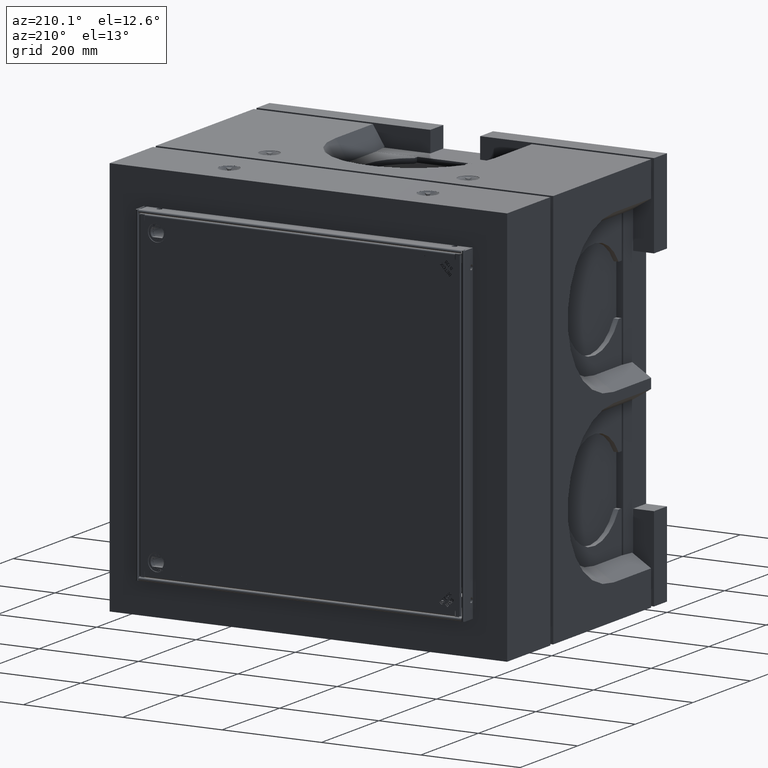
[diagram: clean part render]
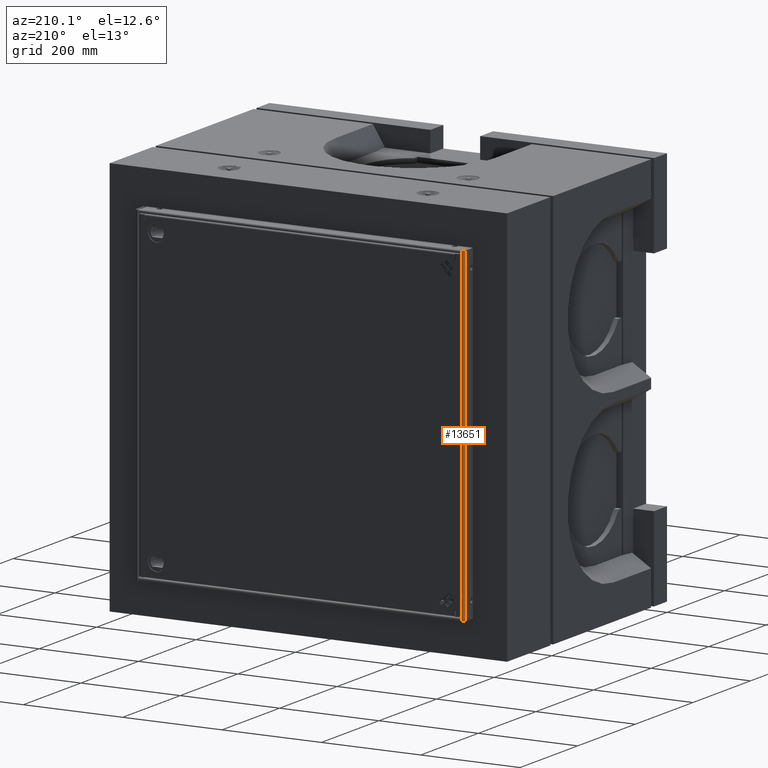
[diagram: same view with one face highlighted and labeled with its STEP entity id]
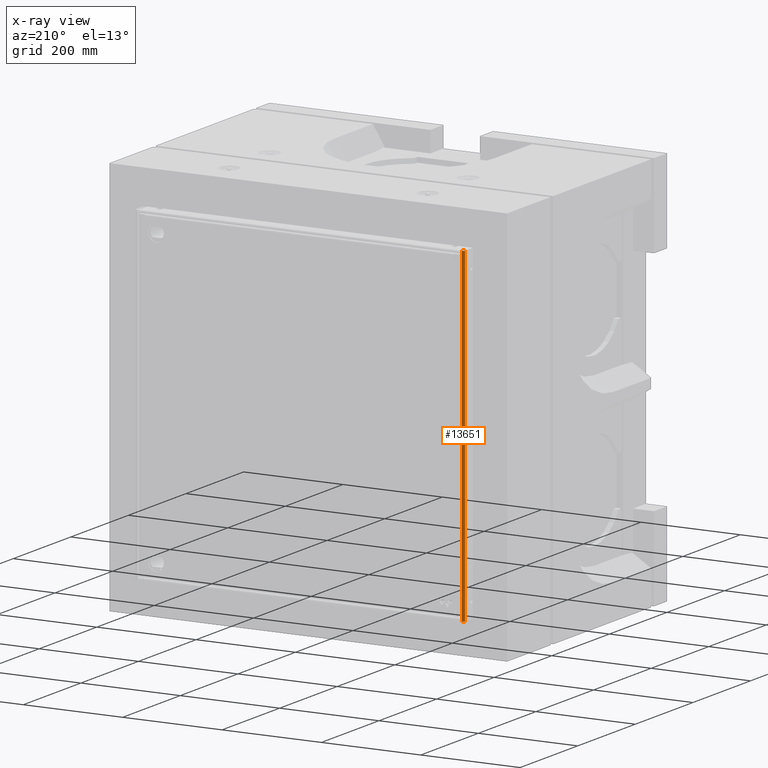
[diagram: x-ray of the same camera — body ghosted, the highlighted face saturated]
A machine part, auxiliary view. The second image highlights one B-rep face of the part: STEP entity #13651.
The next image is the same camera in x-ray: the body ghosted, the highlighted face saturated — about 0% of this face is hidden behind the body in this view.
In plain terms, the highlighted cylindrical surface (edge-blend (fillet) strip) has radius 3 mm, axis along (-0, -0, -1).
Its self-contained STEP definition (entity closure, byte-faithful):
#1263 = EDGE_CURVE ( 'NONE', #9709, #20442, #11110, .T. ) ;
#4145 = CARTESIAN_POINT ( 'NONE',  ( -324.9999999999998863, 582.0000000000004547, 331.0000000000000000 ) ) ;
#4467 = FACE_OUTER_BOUND ( 'NONE', #23922, .T. ) ;
#4793 = ORIENTED_EDGE ( 'NONE', *, *, #12628, .T. ) ;
#5122 = CARTESIAN_POINT ( 'NONE',  ( -327.9999999999998863, 582.0000000000004547, 331.0000000000000000 ) ) ;
#5400 = EDGE_CURVE ( 'NONE', #23921, #19286, #17799, .T. ) ;
#5593 = CARTESIAN_POINT ( 'NONE',  ( -330.9999999999998863, 582.0000000000004547, 331.0000000000000000 ) ) ;
#6091 = VECTOR ( 'NONE', #8119, 1000.000000000000000 ) ;
#6605 = ORIENTED_EDGE ( 'NONE', *, *, #5400, .F. ) ;
#7397 = AXIS2_PLACEMENT_3D ( 'NONE', #5122, #13220, #21166 ) ;
#8119 = DIRECTION ( 'NONE',  ( -0.0000000000000000000, -0.0000000000000000000, -1.000000000000000000 ) ) ;
#9709 = VERTEX_POINT ( 'NONE', #15986 ) ;
#10559 = LINE ( 'NONE', #19561, #12074 ) ;
#10721 = CYLINDRICAL_SURFACE ( 'NONE', #7397, 3.000000000000002665 ) ;
#10742 = LINE ( 'NONE', #4145, #6091 ) ;
#10814 = ORIENTED_EDGE ( 'NONE', *, *, #19756, .F. ) ;
#10986 = DIRECTION ( 'NONE',  ( 1.000000000000000000, 0.0000000000000000000, 0.0000000000000000000 ) ) ;
#11110 = CIRCLE ( 'NONE', #23177, 3.000000000000002665 ) ;
#11909 = CARTESIAN_POINT ( 'NONE',  ( -327.9999999999998863, 582.0000000000004547, 331.0000000000000000 ) ) ;
#12074 = VECTOR ( 'NONE', #13665, 1000.000000000000000 ) ;
#12628 = EDGE_CURVE ( 'NONE', #23921, #9709, #10742, .T. ) ;
#13220 = DIRECTION ( 'NONE',  ( -0.0000000000000000000, -0.0000000000000000000, -1.000000000000000000 ) ) ;
#13319 = AXIS2_PLACEMENT_3D ( 'NONE', #11909, #19690, #20024 ) ;
#13651 = ADVANCED_FACE ( 'NONE', ( #4467 ), #10721, .T. ) ;
#13665 = DIRECTION ( 'NONE',  ( -0.0000000000000000000, -0.0000000000000000000, -1.000000000000000000 ) ) ;
#14459 = ORIENTED_EDGE ( 'NONE', *, *, #1263, .T. ) ;
#15986 = CARTESIAN_POINT ( 'NONE',  ( -324.9999999999998863, 582.0000000000004547, -331.0000000000000000 ) ) ;
#17799 = CIRCLE ( 'NONE', #13319, 3.000000000000002665 ) ;
#19093 = CARTESIAN_POINT ( 'NONE',  ( -324.9999999999998863, 582.0000000000004547, 331.0000000000000000 ) ) ;
#19286 = VERTEX_POINT ( 'NONE', #5593 ) ;
#19561 = CARTESIAN_POINT ( 'NONE',  ( -330.9999999999998863, 582.0000000000004547, 331.0000000000000000 ) ) ;
#19622 = CARTESIAN_POINT ( 'NONE',  ( -330.9999999999998863, 582.0000000000004547, -331.0000000000000000 ) ) ;
#19690 = DIRECTION ( 'NONE',  ( 0.0000000000000000000, 0.0000000000000000000, 1.000000000000000000 ) ) ;
#19756 = EDGE_CURVE ( 'NONE', #19286, #20442, #10559, .T. ) ;
#20024 = DIRECTION ( 'NONE',  ( 1.000000000000000000, 0.0000000000000000000, 0.0000000000000000000 ) ) ;
#20442 = VERTEX_POINT ( 'NONE', #19622 ) ;
#20635 = DIRECTION ( 'NONE',  ( 0.0000000000000000000, 0.0000000000000000000, 1.000000000000000000 ) ) ;
#21166 = DIRECTION ( 'NONE',  ( -1.000000000000000000, 0.0000000000000000000, 0.0000000000000000000 ) ) ;
#22681 = CARTESIAN_POINT ( 'NONE',  ( -327.9999999999998863, 582.0000000000004547, -331.0000000000000000 ) ) ;
#23177 = AXIS2_PLACEMENT_3D ( 'NONE', #22681, #20635, #10986 ) ;
#23921 = VERTEX_POINT ( 'NONE', #19093 ) ;
#23922 = EDGE_LOOP ( 'NONE', ( #14459, #10814, #6605, #4793 ) ) ;